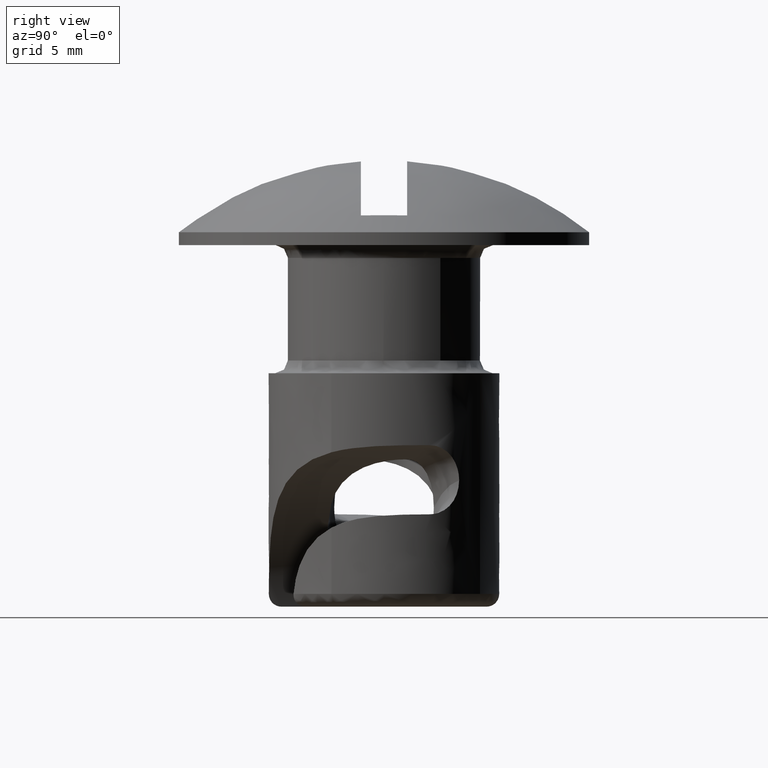
[diagram: clean part render]
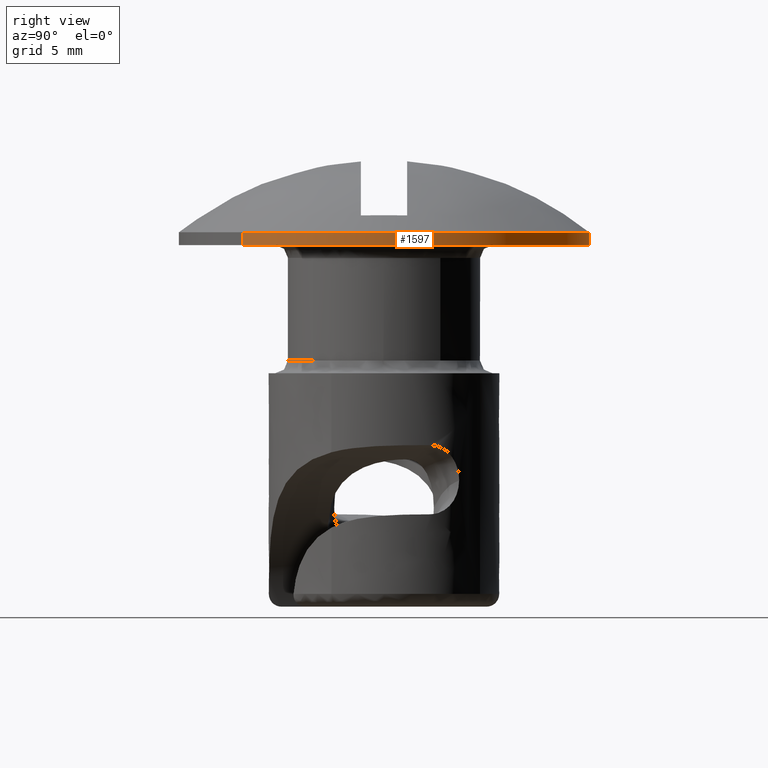
[diagram: same view with one face highlighted and labeled with its STEP entity id]
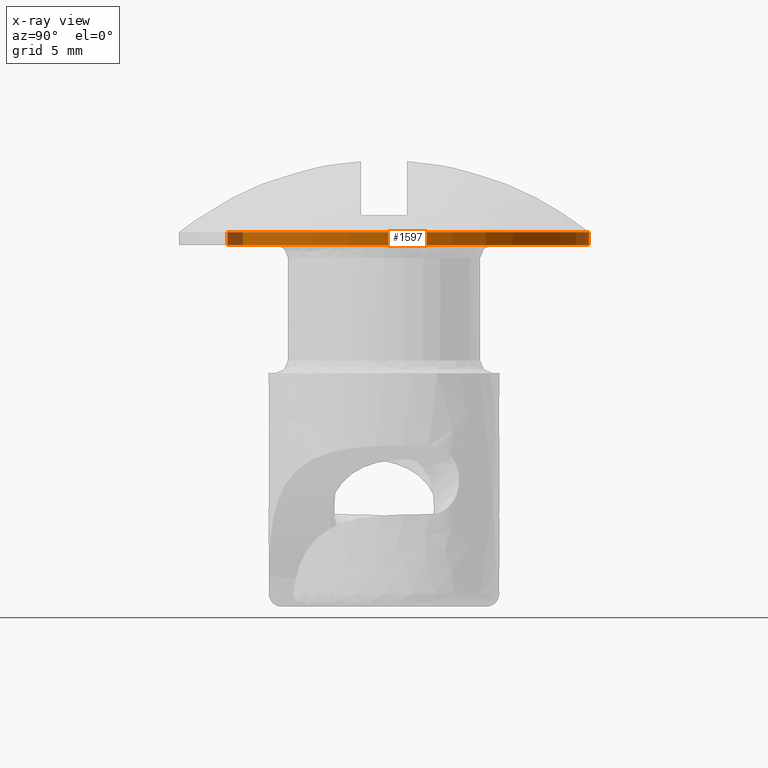
[diagram: x-ray of the same camera — body ghosted, the highlighted face saturated]
A machine part, right view. The second image highlights one B-rep face of the part: STEP entity #1597.
The next image is the same camera in x-ray: the body ghosted, the highlighted face saturated — about 4% of this face is hidden behind the body in this view.
In plain terms, the highlighted face is a freeform B-spline surface patch.
Its self-contained STEP definition (entity closure, byte-faithful):
#1411=CARTESIAN_POINT('',(-5.165936307056203,-6.108445143523718,0.512500000000000));
#1412=CARTESIAN_POINT('',(-5.340757382698318,-5.960598265852118,0.512500000000000));
#1413=CARTESIAN_POINT('',(-5.506836605550030,-5.802994968098299,0.512500000000000));
#1414=CARTESIAN_POINT('',(-11.309831573648330,-0.296158362548269,0.512500000000000));
#1415=CARTESIAN_POINT('',(-5.802994968098299,5.506836605550030,0.512500000000000));
#1416=CARTESIAN_POINT('',(-0.296158362548269,11.309831573648330,0.512500000000000));
#1417=CARTESIAN_POINT('',(5.506836605550030,5.802994968098299,0.512500000000000));
#1418=CARTESIAN_POINT('',(11.309831573648330,0.296158362548269,0.512500000000000));
#1419=CARTESIAN_POINT('',(5.802994968098299,-5.506836605550030,0.512500000000000));
#1420=CARTESIAN_POINT('',(-5.165936307056203,-6.108445143523718,-0.012812500000000));
#1421=CARTESIAN_POINT('',(-5.340757382698318,-5.960598265852118,-0.012812500000000));
#1422=CARTESIAN_POINT('',(-5.506836605550030,-5.802994968098299,-0.012812500000000));
#1423=CARTESIAN_POINT('',(-11.309831573648330,-0.296158362548269,-0.012812500000000));
#1424=CARTESIAN_POINT('',(-5.802994968098299,5.506836605550030,-0.012812500000000));
#1425=CARTESIAN_POINT('',(-0.296158362548269,11.309831573648330,-0.012812500000000));
#1426=CARTESIAN_POINT('',(5.506836605550030,5.802994968098299,-0.012812500000000));
#1427=CARTESIAN_POINT('',(11.309831573648330,0.296158362548269,-0.012812500000000));
#1428=CARTESIAN_POINT('',(5.802994968098299,-5.506836605550030,-0.012812500000000));
#1436=(BOUNDED_SURFACE()B_SPLINE_SURFACE(2,1,((#1411,#1420),(#1412,#1421),(#1413,#1422),(#1414,#1423),(#1415,#1424),(#1416,#1425),(#1417,#1426),(#1418,#1427),(#1419,#1428)),.UNSPECIFIED.,.F.,.F.,.U.)B_SPLINE_SURFACE_WITH_KNOTS((3,2,2,2,3),(2,2),(0.0,0.530193359837562,13.785027355776601,27.039861351715640,40.294695347654667),(0.0,1.0),.UNSPECIFIED.)GEOMETRIC_REPRESENTATION_ITEM()RATIONAL_B_SPLINE_SURFACE(((0.977505800795127,0.977505800795127),(0.988284271247462,0.988284271247462),(1.0,1.0),(0.707106781186548,0.707106781186548),(1.0,1.0),(0.707106781186548,0.707106781186548),(1.0,1.0),(0.707106781186548,0.707106781186548),(1.0,1.0)))REPRESENTATION_ITEM('')SURFACE());
#1437=CARTESIAN_POINT('',(-5.165936351898447,-6.108445203754490,-8.388922E-013));
#1438=VERTEX_POINT('',#1437);
#1439=CARTESIAN_POINT('',(-8.0,0.0,0.0));
#1440=VERTEX_POINT('',#1439);
#1441=CARTESIAN_POINT('',(-5.165936351898447,-6.108445203754490,-8.388922E-013));
#1442=CARTESIAN_POINT('',(-5.469999939406349,-5.851326379941420,-8.035813E-013));
#1443=CARTESIAN_POINT('',(-5.936027969515004,-5.393318804644200,-7.406816E-013));
#1444=CARTESIAN_POINT('',(-6.612868941979351,-4.542460059386999,-6.238305E-013));
#1445=CARTESIAN_POINT('',(-7.119589005124293,-3.702879181421954,-5.085282E-013));
#1446=CARTESIAN_POINT('',(-7.500078218535834,-2.820714389848571,-3.873777E-013));
#1447=CARTESIAN_POINT('',(-7.764417134043220,-1.992215037700340,-2.735972E-013));
#1448=CARTESIAN_POINT('',(-7.952006437208494,-1.067899323135699,-1.466580E-013));
#1449=CARTESIAN_POINT('',(-8.000014946502409,-0.362001248595413,-4.971478E-014));
#1450=CARTESIAN_POINT('',(-8.0,0.0,0.0));
#1451=B_SPLINE_CURVE_WITH_KNOTS('',3,(#1441,#1442,#1443,#1444,#1445,#1446,#1447,#1448,#1449,#1450),.UNSPECIFIED.,.F.,.U.,(4,1,1,1,1,1,1,4),(4.426539E-010,1.194603741784638,1.954807727825617,3.258013081805971,4.126815079000743,4.832718216731497,5.864422537294129,6.950426361270075),.UNSPECIFIED.);
#1452=EDGE_CURVE('',#1438,#1440,#1451,.T.);
#1453=ORIENTED_EDGE('',*,*,#1452,.F.);
#1454=CARTESIAN_POINT('',(-5.165936351944033,-6.108445203715938,0.500000000000000));
#1455=VERTEX_POINT('',#1454);
#1456=CARTESIAN_POINT('',(-5.165936351944033,-6.108445203715938,0.500000000000000));
#1457=CARTESIAN_POINT('',(-5.165936351898447,-6.108445203754490,-8.388922E-013));
#1458=QUASI_UNIFORM_CURVE('',1,(#1456,#1457),.UNSPECIFIED.,.F.,.U.);
#1459=EDGE_CURVE('',#1455,#1438,#1458,.T.);
#1460=ORIENTED_EDGE('',*,*,#1459,.F.);
#1461=CARTESIAN_POINT('',(-8.0,0.0,0.500000000000000));
#1462=VERTEX_POINT('',#1461);
#1463=CARTESIAN_POINT('',(-5.165936351944033,-6.108445203715938,0.500000000000000));
#1464=CARTESIAN_POINT('',(-5.387063562838057,-5.921440358863571,0.500000000000001));
#1465=CARTESIAN_POINT('',(-5.861732874495738,-5.473635867579834,0.499999999999999));
#1466=CARTESIAN_POINT('',(-6.463909064765177,-4.747460898429938,0.500000000000001));
#1467=CARTESIAN_POINT('',(-7.050976502155865,-3.831901786120137,0.499999999999999));
#1468=CARTESIAN_POINT('',(-7.486621836897646,-2.892916500324058,0.499999999999999));
#1469=CARTESIAN_POINT('',(-7.766204482250902,-1.973586909067738,0.500000000000001));
#1470=CARTESIAN_POINT('',(-7.950432835603229,-1.049794256679991,0.500000000000001));
#1471=CARTESIAN_POINT('',(-8.000027609040282,-0.416302820531211,0.499999999999999));
#1472=CARTESIAN_POINT('',(-8.0,0.0,0.500000000000000));
#1473=B_SPLINE_CURVE_WITH_KNOTS('',3,(#1463,#1464,#1465,#1466,#1467,#1468,#1469,#1470,#1471,#1472),.UNSPECIFIED.,.F.,.U.,(4,1,1,1,1,1,1,4),(4.423715E-010,0.868801929287951,1.954807727808943,2.823611850040495,4.126815078965318,5.049919131483427,5.701521804000084,6.950426361210372),.UNSPECIFIED.);
#1474=EDGE_CURVE('',#1455,#1462,#1473,.T.);
#1475=ORIENTED_EDGE('',*,*,#1474,.T.);
#1476=CARTESIAN_POINT('',(0.000000304003676,7.999999999999994,0.500000000000000));
#1477=VERTEX_POINT('',#1476);
#1478=CARTESIAN_POINT('',(-8.0,0.0,0.500000000000000));
#1479=CARTESIAN_POINT('',(-8.000023271461197,0.392698919234995,0.500000000000000));
#1480=CARTESIAN_POINT('',(-7.954117613452323,1.014463815987429,0.500000000000000));
#1481=CARTESIAN_POINT('',(-7.774526353422551,1.947231943193969,0.499999999999999));
#1482=CARTESIAN_POINT('',(-7.527077399031358,2.762980298747246,0.500000000000000));
#1483=CARTESIAN_POINT('',(-7.186528452649060,3.544122148711927,0.499999999999998));
#1484=CARTESIAN_POINT('',(-6.795269252650705,4.244783409952206,0.500000000000005));
#1485=CARTESIAN_POINT('',(-6.339043579235682,4.905413968553820,0.499999999999997));
#1486=CARTESIAN_POINT('',(-5.857370181317394,5.463798577121719,0.500000000000001));
#1487=CARTESIAN_POINT('',(-5.318405388177680,5.989691042076242,0.499999999999998));
#1488=CARTESIAN_POINT('',(-4.634372044955200,6.551106183293189,0.500000000000010));
#1489=CARTESIAN_POINT('',(-3.851791478445306,7.033313697299684,0.499999999999978));
#1490=CARTESIAN_POINT('',(-3.020502858524552,7.420234697084023,0.500000000000023));
#1491=CARTESIAN_POINT('',(-2.233603976002768,7.701806150556292,0.499999999999987));
#1492=CARTESIAN_POINT('',(-1.194451746236693,7.938508013597480,0.500000000000008));
#1493=CARTESIAN_POINT('',(-0.425425000767818,8.000029595591506,0.499999999999997));
#1494=CARTESIAN_POINT('',(0.000000304003676,7.999999999999994,0.500000000000000));
#1495=B_SPLINE_CURVE_WITH_KNOTS('',3,(#1478,#1479,#1480,#1481,#1482,#1483,#1484,#1485,#1486,#1487,#1488,#1489,#1490,#1491,#1492,#1493,#1494),.UNSPECIFIED.,.F.,.U.,(4,1,1,1,1,1,1,1,1,1,1,1,1,1,4),(3.728967E-009,1.178093419360261,1.865321940608563,2.847072830921219,3.730647338758660,4.417875565001967,5.252362632386559,6.135938946431400,6.626799795318334,7.510377633609964,8.786655827095355,9.375705415557151,10.259279955081411,11.290117198488989,12.566390498688831),.UNSPECIFIED.);
#1496=EDGE_CURVE('',#1462,#1477,#1495,.T.);
#1497=ORIENTED_EDGE('',*,*,#1496,.T.);
#1498=CARTESIAN_POINT('',(8.0,0.0,0.500000000000000));
#1499=VERTEX_POINT('',#1498);
#1500=CARTESIAN_POINT('',(0.000000304003676,7.999999999999994,0.500000000000000));
#1501=CARTESIAN_POINT('',(0.294523139783960,8.000004345310396,0.500000000000000));
#1502=CARTESIAN_POINT('',(0.916296372452059,7.965633099843747,0.500000000000001));
#1503=CARTESIAN_POINT('',(1.772346385315877,7.817089453650858,0.499999999999999));
#1504=CARTESIAN_POINT('',(2.701344420767271,7.550787504483908,0.500000000000003));
#1505=CARTESIAN_POINT('',(3.578252391996494,7.181236935024832,0.499999999999992));
#1506=CARTESIAN_POINT('',(4.482917639296519,6.650252533854857,0.500000000000013));
#1507=CARTESIAN_POINT('',(5.237978033308340,6.072094109615939,0.499999999999997));
#1508=CARTESIAN_POINT('',(5.976910629172799,5.351090821239802,0.500000000000001));
#1509=CARTESIAN_POINT('',(6.607652885042545,4.553026496773214,0.499999999999999));
#1510=CARTESIAN_POINT('',(7.124808272192274,3.678042314052792,0.500000000000002));
#1511=CARTESIAN_POINT('',(7.470128950045587,2.898999278138490,0.499999999999996));
#1512=CARTESIAN_POINT('',(7.701304139318279,2.199203193753005,0.500000000000005));
#1513=CARTESIAN_POINT('',(7.927443918408228,1.259885674829133,0.499999999999994));
#1514=CARTESIAN_POINT('',(8.000077345415589,0.523604673070413,0.500000000000012));
#1515=CARTESIAN_POINT('',(8.0,0.0,0.500000000000000));
#1516=B_SPLINE_CURVE_WITH_KNOTS('',3,(#1500,#1501,#1502,#1503,#1504,#1505,#1506,#1507,#1508,#1509,#1510,#1511,#1512,#1513,#1514,#1515),.UNSPECIFIED.,.F.,.U.,(4,1,1,1,1,1,1,1,1,1,1,1,1,4),(3.775073E-009,0.883570133710228,1.865321889766015,2.601633926034948,3.779735414042277,4.712398436135739,5.743236036417410,6.626799614583730,7.804904276072907,8.786655587450259,9.670230530582296,10.357456129326350,10.995595895650700,12.566390156005269),.UNSPECIFIED.);
#1517=EDGE_CURVE('',#1477,#1499,#1516,.T.);
#1518=ORIENTED_EDGE('',*,*,#1517,.T.);
#1519=CARTESIAN_POINT('',(5.802994909940978,-5.506836556576754,0.500000000000000));
#1520=VERTEX_POINT('',#1519);
#1521=CARTESIAN_POINT('',(8.0,0.0,0.500000000000000));
#1522=CARTESIAN_POINT('',(8.000044664042004,-0.458697636422639,0.499999999999999));
#1523=CARTESIAN_POINT('',(7.935876208221263,-1.202083301770435,0.500000000000003));
#1524=CARTESIAN_POINT('',(7.727007921936964,-2.112981605567191,0.499999999999996));
#1525=CARTESIAN_POINT('',(7.487206704348536,-2.850501706391884,0.500000000000004));
#1526=CARTESIAN_POINT('',(7.186677627237425,-3.549018039594776,0.499999999999999));
#1527=CARTESIAN_POINT('',(6.650310840851772,-4.501095430927691,0.500000000000002));
#1528=CARTESIAN_POINT('',(6.162343112819436,-5.128259745262546,0.499999999999998));
#1529=CARTESIAN_POINT('',(5.802994909940978,-5.506836556576754,0.500000000000000));
#1530=B_SPLINE_CURVE_WITH_KNOTS('',3,(#1521,#1522,#1523,#1524,#1525,#1526,#1527,#1528,#1529),.UNSPECIFIED.,.F.,.U.,(4,1,1,1,1,1,4),(1.494821E-009,1.376084773091114,2.230207096749626,2.799624819653047,3.701192277377757,4.507864754947522,6.073754675979321),.UNSPECIFIED.);
#1531=EDGE_CURVE('',#1499,#1520,#1530,.T.);
#1532=ORIENTED_EDGE('',*,*,#1531,.T.);
#1533=CARTESIAN_POINT('',(5.802994909902726,-5.506836556617063,2.481988E-012));
#1534=VERTEX_POINT('',#1533);
#1535=CARTESIAN_POINT('',(5.802994909940978,-5.506836556576754,0.500000000000000));
#1536=CARTESIAN_POINT('',(5.802994909902726,-5.506836556617063,2.481988E-012));
#1537=QUASI_UNIFORM_CURVE('',1,(#1535,#1536),.UNSPECIFIED.,.F.,.U.);
#1538=EDGE_CURVE('',#1520,#1534,#1537,.T.);
#1539=ORIENTED_EDGE('',*,*,#1538,.T.);
#1540=CARTESIAN_POINT('',(8.0,0.0,0.0));
#1541=VERTEX_POINT('',#1540);
#1542=CARTESIAN_POINT('',(8.0,0.0,0.0));
#1543=CARTESIAN_POINT('',(8.000033559394458,-0.427062678913912,1.924815E-013));
#1544=CARTESIAN_POINT('',(7.950480980288269,-1.043916491506419,4.705039E-013));
#1545=CARTESIAN_POINT('',(7.775018988109175,-1.928833390502300,8.693450E-013));
#1546=CARTESIAN_POINT('',(7.548132672370972,-2.704136199430365,1.218782E-012));
#1547=CARTESIAN_POINT('',(7.214580138363917,-3.492233179016504,1.573985E-012));
#1548=CARTESIAN_POINT('',(6.668634656007461,-4.474883517833862,2.016876E-012));
#1549=CARTESIAN_POINT('',(6.184143025258993,-5.105331163756830,2.301025E-012));
#1550=CARTESIAN_POINT('',(5.802994909902726,-5.506836556617063,2.481988E-012));
#1551=B_SPLINE_CURVE_WITH_KNOTS('',3,(#1542,#1543,#1544,#1545,#1546,#1547,#1548,#1549,#1550),.UNSPECIFIED.,.F.,.U.,(4,1,1,1,1,1,4),(1.495200E-009,1.281181972110183,1.850597231791047,2.704720818041225,3.701192277411764,4.412962003761814,6.073754676034890),.UNSPECIFIED.);
#1552=EDGE_CURVE('',#1541,#1534,#1551,.T.);
#1553=ORIENTED_EDGE('',*,*,#1552,.F.);
#1554=CARTESIAN_POINT('',(0.000000304003676,7.999999999999994,0.0));
#1555=VERTEX_POINT('',#1554);
#1556=CARTESIAN_POINT('',(0.000000304003676,7.999999999999994,0.0));
#1557=CARTESIAN_POINT('',(0.294523139784427,8.000004345338667,0.0));
#1558=CARTESIAN_POINT('',(0.916296372449782,7.965633099705753,0.0));
#1559=CARTESIAN_POINT('',(1.772346385304542,7.817089454677205,0.0));
#1560=CARTESIAN_POINT('',(2.701344420845297,7.550787499216340,0.0));
#1561=CARTESIAN_POINT('',(3.578252391489997,7.181236946120396,0.0));
#1562=CARTESIAN_POINT('',(4.482917641374710,6.650252522534714,0.0));
#1563=CARTESIAN_POINT('',(5.237978032390598,6.072094113789520,0.0));
#1564=CARTESIAN_POINT('',(5.976910630418912,5.351090821398072,0.0));
#1565=CARTESIAN_POINT('',(6.607652884523470,4.553026496504547,0.0));
#1566=CARTESIAN_POINT('',(7.124808272277519,3.678042314069517,0.0));
#1567=CARTESIAN_POINT('',(7.470128950044694,2.898999278151115,0.0));
#1568=CARTESIAN_POINT('',(7.701304139318036,2.199203193753455,0.0));
#1569=CARTESIAN_POINT('',(7.927443918408352,1.259885674828917,0.0));
#1570=CARTESIAN_POINT('',(8.000077345415541,0.523604673070505,0.0));
#1571=CARTESIAN_POINT('',(8.0,0.0,0.0));
#1572=B_SPLINE_CURVE_WITH_KNOTS('',3,(#1556,#1557,#1558,#1559,#1560,#1561,#1562,#1563,#1564,#1565,#1566,#1567,#1568,#1569,#1570,#1571),.UNSPECIFIED.,.F.,.U.,(4,1,1,1,1,1,1,1,1,1,1,1,1,4),(3.775073E-009,0.883570133710228,1.865321889766015,2.601633926034948,3.779735414042277,4.712398436135739,5.743236036417410,6.626799614583730,7.804904276072907,8.786655587450259,9.670230530582296,10.357456129326350,10.995595895650700,12.566390156005269),.UNSPECIFIED.);
#1573=EDGE_CURVE('',#1555,#1541,#1572,.T.);
#1574=ORIENTED_EDGE('',*,*,#1573,.F.);
#1575=CARTESIAN_POINT('',(-8.0,0.0,0.0));
#1576=CARTESIAN_POINT('',(-8.000023270777232,0.392698919495346,0.0));
#1577=CARTESIAN_POINT('',(-7.954117615625063,1.014463815160376,0.0));
#1578=CARTESIAN_POINT('',(-7.774526349067791,1.947231944851606,0.0));
#1579=CARTESIAN_POINT('',(-7.527077410463679,2.762980294056677,0.0));
#1580=CARTESIAN_POINT('',(-7.186528432720116,3.544122162158419,0.0));
#1581=CARTESIAN_POINT('',(-6.795269675192995,4.244783714887969,0.0));
#1582=CARTESIAN_POINT('',(-6.376283105087074,4.851482954082530,0.0));
#1583=CARTESIAN_POINT('',(-5.849064427638254,5.478061374868281,0.0));
#1584=CARTESIAN_POINT('',(-5.260765326098317,6.048589097911654,0.0));
#1585=CARTESIAN_POINT('',(-4.626324536548805,6.540576592473593,0.0));
#1586=CARTESIAN_POINT('',(-3.922123567222997,6.989551048695259,0.0));
#1587=CARTESIAN_POINT('',(-3.159373467055042,7.370556745812144,0.0));
#1588=CARTESIAN_POINT('',(-2.233603260672029,7.701804767782066,0.0));
#1589=CARTESIAN_POINT('',(-1.194452025194813,7.938508550884684,0.0));
#1590=CARTESIAN_POINT('',(-0.425424913800220,8.000029428247370,0.0));
#1591=CARTESIAN_POINT('',(0.000000304003676,7.999999999999994,0.0));
#1592=B_SPLINE_CURVE_WITH_KNOTS('',3,(#1575,#1576,#1577,#1578,#1579,#1580,#1581,#1582,#1583,#1584,#1585,#1586,#1587,#1588,#1589,#1590,#1591),.UNSPECIFIED.,.F.,.U.,(4,1,1,1,1,1,1,1,1,1,1,1,1,1,4),(3.728967E-009,1.178093419360261,1.865321940608563,2.847072830921219,3.730647338758660,4.417875565001967,5.252362632386559,5.939590953393571,6.872244524714721,7.706727232011611,8.344868274839723,9.375705415557151,10.259279955081411,11.290117198488989,12.566390498688831),.UNSPECIFIED.);
#1593=EDGE_CURVE('',#1440,#1555,#1592,.T.);
#1594=ORIENTED_EDGE('',*,*,#1593,.F.);
#1595=EDGE_LOOP('',(#1453,#1460,#1475,#1497,#1518,#1532,#1539,#1553,#1574,#1594));
#1596=FACE_OUTER_BOUND('',#1595,.T.);
#1597=ADVANCED_FACE('',(#1596),#1436,.T.);